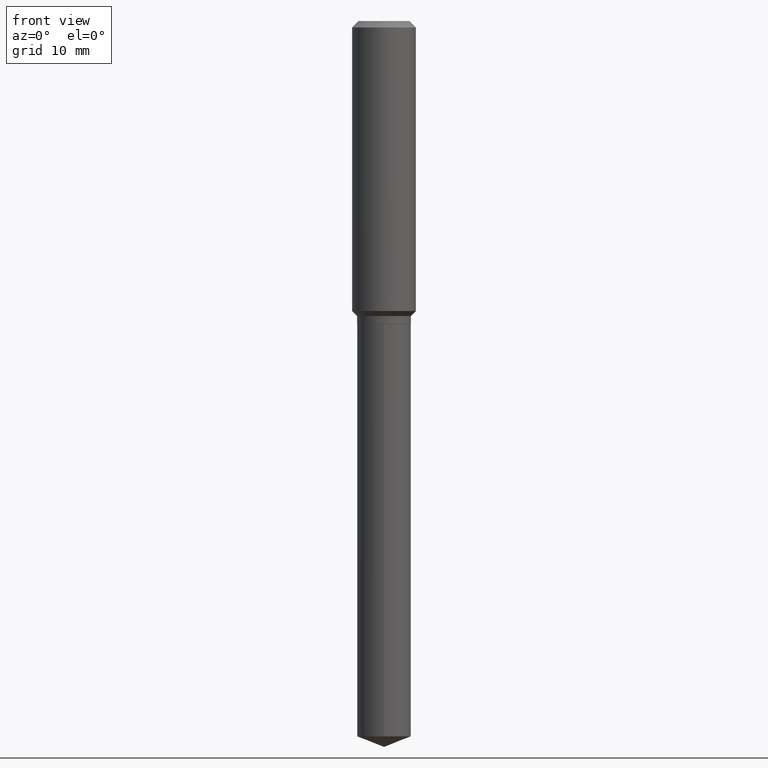
[diagram: clean part render]
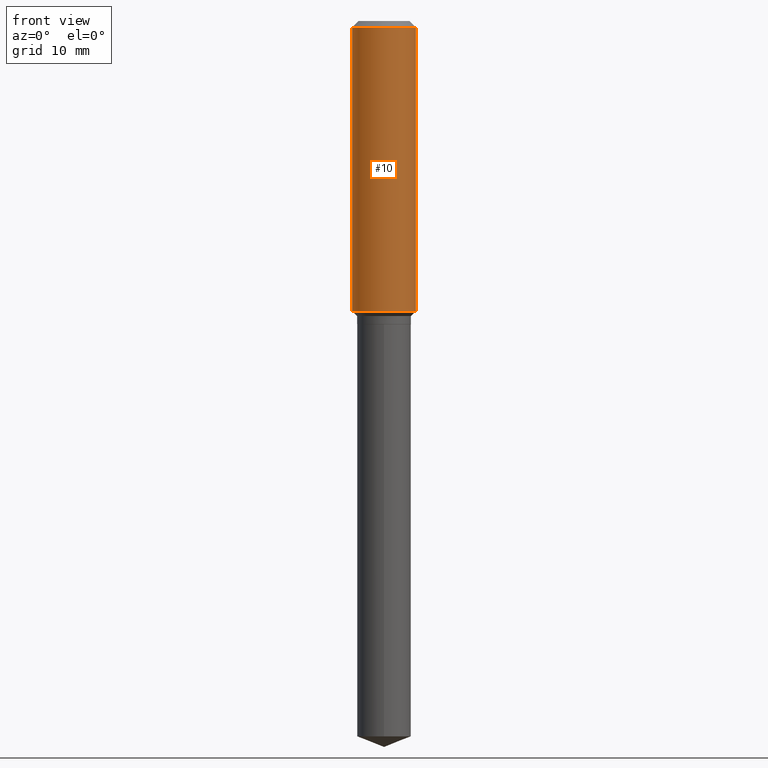
[diagram: same view with one face highlighted and labeled with its STEP entity id]
A machine part, front view. The second image highlights one B-rep face of the part: STEP entity #10.
In plain terms, the highlighted cylindrical surface (edge-blend (fillet) strip) has radius 4.0005 mm, axis along (-0, 0, 1).
Its self-contained STEP definition (entity closure, byte-faithful):
#1 = LINE ( 'NONE', #448, #132 ) ;
#10 = ADVANCED_FACE ( 'NONE', ( #459 ), #117, .T. ) ;
#41 = DIRECTION ( 'NONE',  ( -2.445468806185136597E-29, 3.491481338843145583E-15, 1.000000000000000000 ) ) ;
#43 = ORIENTED_EDGE ( 'NONE', *, *, #83, .F. ) ;
#47 = CIRCLE ( 'NONE', #350, 0.1575000000000000011 ) ;
#69 = DIRECTION ( 'NONE',  ( -2.445468806185136597E-29, 3.491481338843145583E-15, 1.000000000000000000 ) ) ;
#83 = EDGE_CURVE ( 'NONE', #407, #310, #101, .T. ) ;
#101 = LINE ( 'NONE', #130, #298 ) ;
#108 = CARTESIAN_POINT ( 'NONE',  ( -0.1575000000000000011, -1.434826503508131819E-15, -0.03150000000000019451 ) ) ;
#110 = DIRECTION ( 'NONE',  ( -2.445468806185136597E-29, 3.491481338843145583E-15, 1.000000000000000000 ) ) ;
#111 = AXIS2_PLACEMENT_3D ( 'NONE', #425, #41, #157 ) ;
#117 = CYLINDRICAL_SURFACE ( 'NONE', #111, 0.1575000000000000844 ) ;
#124 = CARTESIAN_POINT ( 'NONE',  ( 0.1575000000000001676, -6.097697584222609235E-15, -1.431450000000000111 ) ) ;
#130 = CARTESIAN_POINT ( 'NONE',  ( -0.1575000000000000844, 1.119104808822158392E-15, -7.747322767151481189E-30 ) ) ;
#132 = VECTOR ( 'NONE', #458, 39.37007874015748143 ) ;
#157 = DIRECTION ( 'NONE',  ( 1.000000000000000000, -6.982962677686267499E-15, 4.876176775795936353E-29 ) ) ;
#204 = DIRECTION ( 'NONE',  ( -2.445468806185136877E-29, 3.491481338843145188E-15, 1.000000000000000000 ) ) ;
#213 = CARTESIAN_POINT ( 'NONE',  ( -0.1575000000000001676, -3.878776153664862573E-15, -1.431450000000000111 ) ) ;
#214 = CARTESIAN_POINT ( 'NONE',  ( 7.703226739483228723E-31, -1.099816621735597661E-16, -0.03150000000000019451 ) ) ;
#227 = ORIENTED_EDGE ( 'NONE', *, *, #351, .T. ) ;
#249 = DIRECTION ( 'NONE',  ( 1.000000000000000000, -6.982962677686265922E-15, 0.000000000000000000 ) ) ;
#267 = ORIENTED_EDGE ( 'NONE', *, *, #313, .T. ) ;
#298 = VECTOR ( 'NONE', #204, 39.37007874015748143 ) ;
#310 = VERTEX_POINT ( 'NONE', #108 ) ;
#313 = EDGE_CURVE ( 'NONE', #407, #444, #461, .T. ) ;
#328 = EDGE_LOOP ( 'NONE', ( #43, #267, #227, #344 ) ) ;
#339 = AXIS2_PLACEMENT_3D ( 'NONE', #419, #69, #366 ) ;
#341 = EDGE_CURVE ( 'NONE', #310, #378, #47, .T. ) ;
#344 = ORIENTED_EDGE ( 'NONE', *, *, #341, .F. ) ;
#350 = AXIS2_PLACEMENT_3D ( 'NONE', #214, #110, #249 ) ;
#351 = EDGE_CURVE ( 'NONE', #444, #378, #1, .T. ) ;
#366 = DIRECTION ( 'NONE',  ( 1.000000000000000000, -6.982962677686267499E-15, 0.000000000000000000 ) ) ;
#378 = VERTEX_POINT ( 'NONE', #413 ) ;
#407 = VERTEX_POINT ( 'NONE', #213 ) ;
#413 = CARTESIAN_POINT ( 'NONE',  ( 0.1575000000000000011, -1.209798283909146741E-15, -0.03150000000000019451 ) ) ;
#419 = CARTESIAN_POINT ( 'NONE',  ( 3.500566322613714211E-29, -4.997880962487020966E-15, -1.431450000000000111 ) ) ;
#425 = CARTESIAN_POINT ( 'NONE',  ( 0.000000000000000000, 0.000000000000000000, 0.000000000000000000 ) ) ;
#444 = VERTEX_POINT ( 'NONE', #124 ) ;
#448 = CARTESIAN_POINT ( 'NONE',  ( 0.1575000000000000844, -1.099816621735587677E-15, 7.679978421878603638E-30 ) ) ;
#458 = DIRECTION ( 'NONE',  ( -2.445468806185136877E-29, 3.491481338843145188E-15, 1.000000000000000000 ) ) ;
#459 = FACE_OUTER_BOUND ( 'NONE', #328, .T. ) ;
#461 = CIRCLE ( 'NONE', #339, 0.1575000000000001676 ) ;